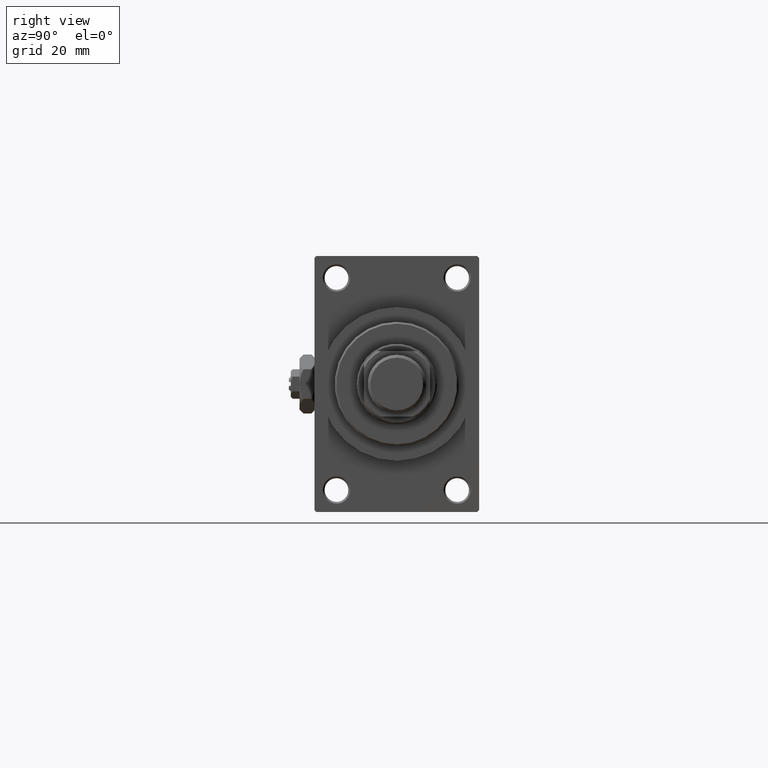
[diagram: clean part render]
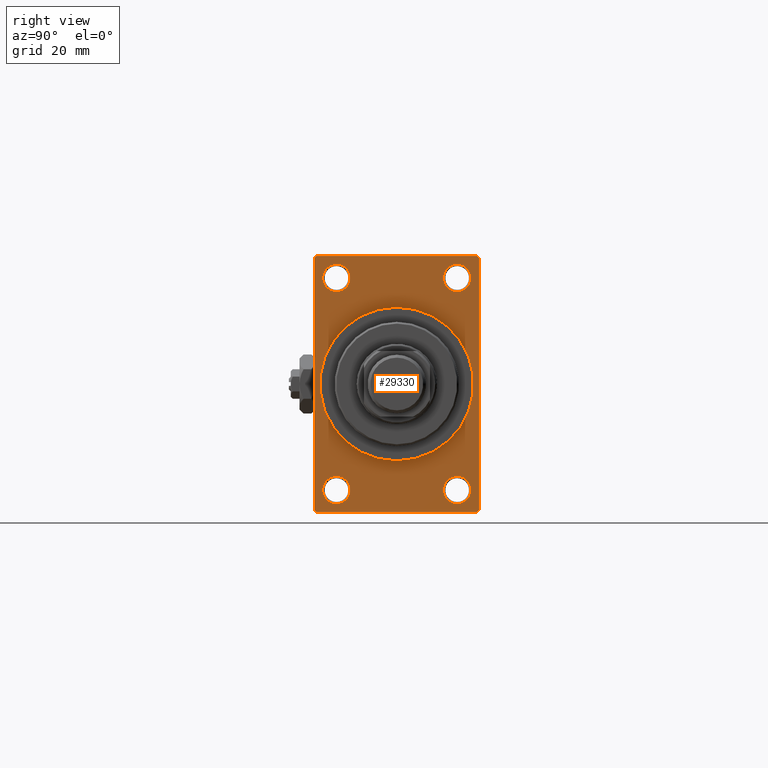
[diagram: same view with one face highlighted and labeled with its STEP entity id]
A machine part, right view. The second image highlights one B-rep face of the part: STEP entity #29330.
In plain terms, the highlighted planar face has unit normal (-1, 0, 0).
Its self-contained STEP definition (entity closure, byte-faithful):
#178 = CIRCLE ( 'NONE', #6561, 3.750000000000069278 ) ;
#412 = DIRECTION ( 'NONE',  ( -1.000000000000000000, -0.000000000000000000, -0.000000000000000000 ) ) ;
#445 = ORIENTED_EDGE ( 'NONE', *, *, #1496, .T. ) ;
#537 = AXIS2_PLACEMENT_3D ( 'NONE', #35936, #32166, #35433 ) ;
#621 = EDGE_LOOP ( 'NONE', ( #18872, #1180 ) ) ;
#880 = CIRCLE ( 'NONE', #28902, 3.750000000000076383 ) ;
#1009 = DIRECTION ( 'NONE',  ( -1.000000000000000000, -0.000000000000000000, -0.000000000000000000 ) ) ;
#1059 = ORIENTED_EDGE ( 'NONE', *, *, #31399, .T. ) ;
#1180 = ORIENTED_EDGE ( 'NONE', *, *, #29923, .T. ) ;
#1313 = AXIS2_PLACEMENT_3D ( 'NONE', #43754, #46763, #43509 ) ;
#1496 = EDGE_CURVE ( 'NONE', #15052, #5161, #8588, .T. ) ;
#1862 = EDGE_CURVE ( 'NONE', #47530, #14879, #6463, .T. ) ;
#2353 = AXIS2_PLACEMENT_3D ( 'NONE', #34983, #412, #4159 ) ;
#2460 = CARTESIAN_POINT ( 'NONE',  ( 113.0000000000000142, -22.50000000000000355, 34.50000000000000000 ) ) ;
#2675 = EDGE_CURVE ( 'NONE', #11389, #22017, #19865, .T. ) ;
#3057 = VERTEX_POINT ( 'NONE', #34795 ) ;
#3814 = CARTESIAN_POINT ( 'NONE',  ( 113.0000000000000142, 0.000000000000000000, 0.000000000000000000 ) ) ;
#4069 = CARTESIAN_POINT ( 'NONE',  ( 113.0000000000000142, -22.50000000000000355, 35.00000000000000000 ) ) ;
#4159 = DIRECTION ( 'NONE',  ( 0.000000000000000000, 0.000000000000000000, 1.000000000000000000 ) ) ;
#4253 = CARTESIAN_POINT ( 'NONE',  ( 113.0000000000000142, 16.50000000000000000, -25.24999999999992184 ) ) ;
#4400 = EDGE_CURVE ( 'NONE', #29415, #14774, #39347, .T. ) ;
#4401 = EDGE_LOOP ( 'NONE', ( #17654, #7854 ) ) ;
#4836 = FACE_BOUND ( 'NONE', #621, .T. ) ;
#4929 = ORIENTED_EDGE ( 'NONE', *, *, #1862, .T. ) ;
#5161 = VERTEX_POINT ( 'NONE', #43843 ) ;
#5340 = FACE_BOUND ( 'NONE', #42516, .T. ) ;
#5827 = CARTESIAN_POINT ( 'NONE',  ( 113.0000000000000142, -16.50000000000000000, 29.00000000000000711 ) ) ;
#5958 = EDGE_LOOP ( 'NONE', ( #445, #45500 ) ) ;
#6111 = CARTESIAN_POINT ( 'NONE',  ( 113.0000000000000142, 22.49999999999999645, -35.00000000000000000 ) ) ;
#6463 = LINE ( 'NONE', #2460, #22227 ) ;
#6561 = AXIS2_PLACEMENT_3D ( 'NONE', #5827, #21614, #48398 ) ;
#6939 = VERTEX_POINT ( 'NONE', #29518 ) ;
#7854 = ORIENTED_EDGE ( 'NONE', *, *, #38179, .T. ) ;
#8072 = LINE ( 'NONE', #4069, #47804 ) ;
#8588 = CIRCLE ( 'NONE', #23019, 3.750000000000072831 ) ;
#9491 = VERTEX_POINT ( 'NONE', #30166 ) ;
#9799 = EDGE_CURVE ( 'NONE', #5161, #15052, #31178, .T. ) ;
#10057 = VECTOR ( 'NONE', #22525, 1000.000000000000000 ) ;
#11389 = VERTEX_POINT ( 'NONE', #16075 ) ;
#11960 = VERTEX_POINT ( 'NONE', #29196 ) ;
#12325 = CARTESIAN_POINT ( 'NONE',  ( 113.0000000000000142, -16.50000000000000000, -28.99999999999999289 ) ) ;
#12330 = EDGE_CURVE ( 'NONE', #49146, #14774, #33839, .T. ) ;
#13031 = DIRECTION ( 'NONE',  ( 0.000000000000000000, 0.000000000000000000, 1.000000000000000000 ) ) ;
#13263 = DIRECTION ( 'NONE',  ( -0.000000000000000000, -0.7071067811865474617, -0.7071067811865474617 ) ) ;
#13560 = CARTESIAN_POINT ( 'NONE',  ( 113.0000000000000142, -21.99999999999998934, 35.00000000000000000 ) ) ;
#14335 = VECTOR ( 'NONE', #36831, 999.9999999999998863 ) ;
#14774 = VERTEX_POINT ( 'NONE', #34106 ) ;
#14879 = VERTEX_POINT ( 'NONE', #24557 ) ;
#15052 = VERTEX_POINT ( 'NONE', #15476 ) ;
#15160 = EDGE_CURVE ( 'NONE', #6939, #17069, #31381, .T. ) ;
#15476 = CARTESIAN_POINT ( 'NONE',  ( 113.0000000000000142, 16.50000000000000000, 25.24999999999993250 ) ) ;
#15511 = LINE ( 'NONE', #44830, #10057 ) ;
#15801 = DIRECTION ( 'NONE',  ( -1.000000000000000000, -0.000000000000000000, -0.000000000000000000 ) ) ;
#15826 = VERTEX_POINT ( 'NONE', #17384 ) ;
#15892 = FACE_OUTER_BOUND ( 'NONE', #43481, .T. ) ;
#16075 = CARTESIAN_POINT ( 'NONE',  ( 113.0000000000000142, -16.50000000000000000, -32.75000000000007105 ) ) ;
#16141 = AXIS2_PLACEMENT_3D ( 'NONE', #3814, #30136, #22625 ) ;
#16252 = CARTESIAN_POINT ( 'NONE',  ( 113.0000000000000142, -16.50000000000000000, 29.00000000000000711 ) ) ;
#16538 = DIRECTION ( 'NONE',  ( 0.000000000000000000, 0.000000000000000000, 1.000000000000000000 ) ) ;
#16597 = CIRCLE ( 'NONE', #40656, 21.00000000000000000 ) ;
#17069 = VERTEX_POINT ( 'NONE', #17106 ) ;
#17106 = CARTESIAN_POINT ( 'NONE',  ( 113.0000000000000142, 2.571758278209441661E-15, -21.00000000000000000 ) ) ;
#17249 = VECTOR ( 'NONE', #39428, 1000.000000000000114 ) ;
#17384 = CARTESIAN_POINT ( 'NONE',  ( 113.0000000000000142, -16.50000000000000000, 25.24999999999993960 ) ) ;
#17408 = ORIENTED_EDGE ( 'NONE', *, *, #24216, .T. ) ;
#17654 = ORIENTED_EDGE ( 'NONE', *, *, #42344, .T. ) ;
#18872 = ORIENTED_EDGE ( 'NONE', *, *, #43511, .T. ) ;
#19308 = CIRCLE ( 'NONE', #39353, 3.750000000000076383 ) ;
#19359 = DIRECTION ( 'NONE',  ( 0.000000000000000000, 0.000000000000000000, -1.000000000000000000 ) ) ;
#19375 = DIRECTION ( 'NONE',  ( 1.000000000000000000, 0.000000000000000000, 0.000000000000000000 ) ) ;
#19865 = CIRCLE ( 'NONE', #32672, 3.750000000000076383 ) ;
#20141 = FACE_BOUND ( 'NONE', #5958, .T. ) ;
#20638 = PLANE ( 'NONE',  #537 ) ;
#20724 = VECTOR ( 'NONE', #46843, 1000.000000000000000 ) ;
#21614 = DIRECTION ( 'NONE',  ( -1.000000000000000000, -0.000000000000000000, -0.000000000000000000 ) ) ;
#21618 = CARTESIAN_POINT ( 'NONE',  ( 113.0000000000000142, 21.99999999999999645, -35.00000000000000000 ) ) ;
#21903 = VERTEX_POINT ( 'NONE', #37793 ) ;
#22017 = VERTEX_POINT ( 'NONE', #23723 ) ;
#22227 = VECTOR ( 'NONE', #13263, 1000.000000000000114 ) ;
#22525 = DIRECTION ( 'NONE',  ( 0.000000000000000000, -1.000000000000000000, 0.000000000000000000 ) ) ;
#22625 = DIRECTION ( 'NONE',  ( 0.000000000000000000, 0.000000000000000000, -1.000000000000000000 ) ) ;
#23019 = AXIS2_PLACEMENT_3D ( 'NONE', #47398, #35148, #31141 ) ;
#23486 = EDGE_LOOP ( 'NONE', ( #39214, #24516 ) ) ;
#23646 = EDGE_CURVE ( 'NONE', #29415, #11960, #24378, .T. ) ;
#23723 = CARTESIAN_POINT ( 'NONE',  ( 113.0000000000000142, -16.50000000000000000, -25.24999999999992184 ) ) ;
#23815 = CARTESIAN_POINT ( 'NONE',  ( 113.0000000000000142, 16.50000000000000000, -28.99999999999999289 ) ) ;
#23882 = CARTESIAN_POINT ( 'NONE',  ( 113.0000000000000142, 21.99999999999999645, 35.00000000000000000 ) ) ;
#24216 = EDGE_CURVE ( 'NONE', #11960, #47530, #15511, .T. ) ;
#24378 = LINE ( 'NONE', #23882, #17249 ) ;
#24516 = ORIENTED_EDGE ( 'NONE', *, *, #40290, .T. ) ;
#24557 = CARTESIAN_POINT ( 'NONE',  ( 113.0000000000000142, -22.50000000000000355, 34.50000000000000000 ) ) ;
#25227 = ORIENTED_EDGE ( 'NONE', *, *, #33643, .F. ) ;
#25938 = ORIENTED_EDGE ( 'NONE', *, *, #12330, .T. ) ;
#26339 = VERTEX_POINT ( 'NONE', #4253 ) ;
#26788 = DIRECTION ( 'NONE',  ( -1.000000000000000000, -0.000000000000000000, -0.000000000000000000 ) ) ;
#28345 = EDGE_CURVE ( 'NONE', #17069, #6939, #16597, .T. ) ;
#28403 = FACE_BOUND ( 'NONE', #23486, .T. ) ;
#28527 = VERTEX_POINT ( 'NONE', #46066 ) ;
#28902 = AXIS2_PLACEMENT_3D ( 'NONE', #12325, #47130, #43636 ) ;
#29052 = LINE ( 'NONE', #32330, #14335 ) ;
#29196 = CARTESIAN_POINT ( 'NONE',  ( 113.0000000000000142, 21.99999999999999645, 35.00000000000000000 ) ) ;
#29330 = ADVANCED_FACE ( 'NONE', ( #31425, #28403, #4836, #20141, #5340, #15892 ), #20638, .F. ) ;
#29415 = VERTEX_POINT ( 'NONE', #43940 ) ;
#29518 = CARTESIAN_POINT ( 'NONE',  ( 113.0000000000000142, 0.000000000000000000, 21.00000000000000000 ) ) ;
#29923 = EDGE_CURVE ( 'NONE', #26339, #28527, #35858, .T. ) ;
#30136 = DIRECTION ( 'NONE',  ( 1.000000000000000000, 0.000000000000000000, 0.000000000000000000 ) ) ;
#30166 = CARTESIAN_POINT ( 'NONE',  ( 113.0000000000000142, -22.50000000000000355, -34.49999999999997158 ) ) ;
#31088 = VECTOR ( 'NONE', #48693, 1000.000000000000000 ) ;
#31141 = DIRECTION ( 'NONE',  ( 0.000000000000000000, 0.000000000000000000, 1.000000000000000000 ) ) ;
#31178 = CIRCLE ( 'NONE', #2353, 3.750000000000072831 ) ;
#31381 = CIRCLE ( 'NONE', #16141, 21.00000000000000000 ) ;
#31399 = EDGE_CURVE ( 'NONE', #14879, #9491, #8072, .T. ) ;
#31425 = FACE_BOUND ( 'NONE', #4401, .T. ) ;
#31440 = ORIENTED_EDGE ( 'NONE', *, *, #15160, .F. ) ;
#31681 = ORIENTED_EDGE ( 'NONE', *, *, #23646, .T. ) ;
#32005 = AXIS2_PLACEMENT_3D ( 'NONE', #16252, #26788, #39313 ) ;
#32061 = CARTESIAN_POINT ( 'NONE',  ( 113.0000000000000142, 22.49999999999999645, 35.00000000000000000 ) ) ;
#32166 = DIRECTION ( 'NONE',  ( -1.000000000000000000, 0.000000000000000000, -0.000000000000000000 ) ) ;
#32330 = CARTESIAN_POINT ( 'NONE',  ( 113.0000000000000142, -21.99999999999998934, -35.00000000000000000 ) ) ;
#32672 = AXIS2_PLACEMENT_3D ( 'NONE', #39612, #15801, #13031 ) ;
#32840 = CIRCLE ( 'NONE', #32005, 3.750000000000069278 ) ;
#33643 = EDGE_CURVE ( 'NONE', #49146, #21903, #40476, .T. ) ;
#33839 = LINE ( 'NONE', #45346, #40874 ) ;
#34106 = CARTESIAN_POINT ( 'NONE',  ( 113.0000000000000142, 22.49999999999999645, -34.50000000000000000 ) ) ;
#34670 = DIRECTION ( 'NONE',  ( 0.000000000000000000, 0.000000000000000000, -1.000000000000000000 ) ) ;
#34795 = CARTESIAN_POINT ( 'NONE',  ( 113.0000000000000142, -16.50000000000000000, 32.75000000000007816 ) ) ;
#34983 = CARTESIAN_POINT ( 'NONE',  ( 113.0000000000000142, 16.50000000000000000, 29.00000000000000355 ) ) ;
#35148 = DIRECTION ( 'NONE',  ( -1.000000000000000000, -0.000000000000000000, -0.000000000000000000 ) ) ;
#35433 = DIRECTION ( 'NONE',  ( -0.000000000000000000, 0.000000000000000000, 1.000000000000000000 ) ) ;
#35858 = CIRCLE ( 'NONE', #1313, 3.750000000000076383 ) ;
#35872 = EDGE_CURVE ( 'NONE', #9491, #21903, #29052, .T. ) ;
#35936 = CARTESIAN_POINT ( 'NONE',  ( 113.0000000000000142, 0.000000000000000000, 0.000000000000000000 ) ) ;
#36831 = DIRECTION ( 'NONE',  ( 0.000000000000000000, 0.7071067811865376918, -0.7071067811865574537 ) ) ;
#37793 = CARTESIAN_POINT ( 'NONE',  ( 113.0000000000000142, -21.99999999999997513, -35.00000000000000000 ) ) ;
#38130 = ORIENTED_EDGE ( 'NONE', *, *, #4400, .F. ) ;
#38179 = EDGE_CURVE ( 'NONE', #3057, #15826, #32840, .T. ) ;
#38440 = CARTESIAN_POINT ( 'NONE',  ( 113.0000000000000142, 0.000000000000000000, 0.000000000000000000 ) ) ;
#38943 = ORIENTED_EDGE ( 'NONE', *, *, #28345, .F. ) ;
#39214 = ORIENTED_EDGE ( 'NONE', *, *, #2675, .T. ) ;
#39313 = DIRECTION ( 'NONE',  ( 0.000000000000000000, 0.000000000000000000, 1.000000000000000000 ) ) ;
#39347 = LINE ( 'NONE', #32061, #20724 ) ;
#39353 = AXIS2_PLACEMENT_3D ( 'NONE', #23815, #1009, #16538 ) ;
#39428 = DIRECTION ( 'NONE',  ( 0.000000000000000000, -0.7071067811865474617, 0.7071067811865474617 ) ) ;
#39612 = CARTESIAN_POINT ( 'NONE',  ( 113.0000000000000142, -16.50000000000000000, -28.99999999999999289 ) ) ;
#40290 = EDGE_CURVE ( 'NONE', #22017, #11389, #880, .T. ) ;
#40476 = LINE ( 'NONE', #6111, #31088 ) ;
#40656 = AXIS2_PLACEMENT_3D ( 'NONE', #38440, #19375, #34670 ) ;
#40874 = VECTOR ( 'NONE', #42354, 1000.000000000000114 ) ;
#42344 = EDGE_CURVE ( 'NONE', #15826, #3057, #178, .T. ) ;
#42354 = DIRECTION ( 'NONE',  ( -0.000000000000000000, 0.7071067811865474617, 0.7071067811865474617 ) ) ;
#42516 = EDGE_LOOP ( 'NONE', ( #31440, #38943 ) ) ;
#43481 = EDGE_LOOP ( 'NONE', ( #1059, #43704, #25227, #25938, #38130, #31681, #17408, #4929 ) ) ;
#43509 = DIRECTION ( 'NONE',  ( 0.000000000000000000, 0.000000000000000000, 1.000000000000000000 ) ) ;
#43511 = EDGE_CURVE ( 'NONE', #28527, #26339, #19308, .T. ) ;
#43636 = DIRECTION ( 'NONE',  ( 0.000000000000000000, 0.000000000000000000, 1.000000000000000000 ) ) ;
#43704 = ORIENTED_EDGE ( 'NONE', *, *, #35872, .T. ) ;
#43754 = CARTESIAN_POINT ( 'NONE',  ( 113.0000000000000142, 16.50000000000000000, -28.99999999999999289 ) ) ;
#43843 = CARTESIAN_POINT ( 'NONE',  ( 113.0000000000000142, 16.50000000000000000, 32.75000000000007816 ) ) ;
#43940 = CARTESIAN_POINT ( 'NONE',  ( 113.0000000000000142, 22.49999999999999645, 34.50000000000000000 ) ) ;
#44830 = CARTESIAN_POINT ( 'NONE',  ( 113.0000000000000142, 22.49999999999999645, 35.00000000000000000 ) ) ;
#45346 = CARTESIAN_POINT ( 'NONE',  ( 113.0000000000000142, 22.49999999999999645, -34.50000000000000000 ) ) ;
#45500 = ORIENTED_EDGE ( 'NONE', *, *, #9799, .T. ) ;
#46066 = CARTESIAN_POINT ( 'NONE',  ( 113.0000000000000142, 16.50000000000000000, -32.75000000000007105 ) ) ;
#46763 = DIRECTION ( 'NONE',  ( -1.000000000000000000, -0.000000000000000000, -0.000000000000000000 ) ) ;
#46843 = DIRECTION ( 'NONE',  ( 0.000000000000000000, 0.000000000000000000, -1.000000000000000000 ) ) ;
#47130 = DIRECTION ( 'NONE',  ( -1.000000000000000000, -0.000000000000000000, -0.000000000000000000 ) ) ;
#47398 = CARTESIAN_POINT ( 'NONE',  ( 113.0000000000000142, 16.50000000000000000, 29.00000000000000355 ) ) ;
#47530 = VERTEX_POINT ( 'NONE', #13560 ) ;
#47804 = VECTOR ( 'NONE', #19359, 1000.000000000000000 ) ;
#48398 = DIRECTION ( 'NONE',  ( 0.000000000000000000, 0.000000000000000000, 1.000000000000000000 ) ) ;
#48693 = DIRECTION ( 'NONE',  ( 0.000000000000000000, -1.000000000000000000, 0.000000000000000000 ) ) ;
#49146 = VERTEX_POINT ( 'NONE', #21618 ) ;